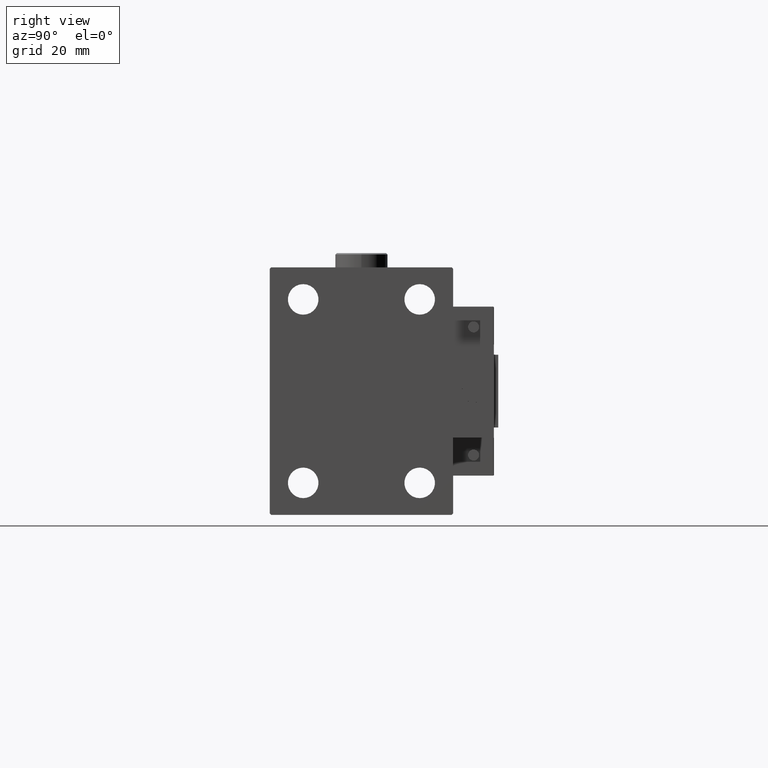
[diagram: clean part render]
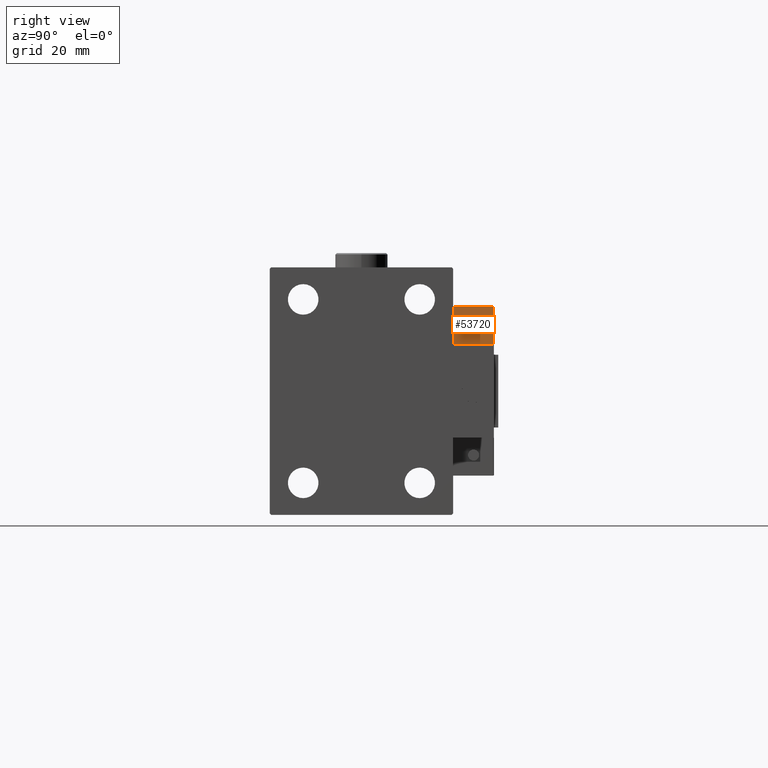
[diagram: same view with one face highlighted and labeled with its STEP entity id]
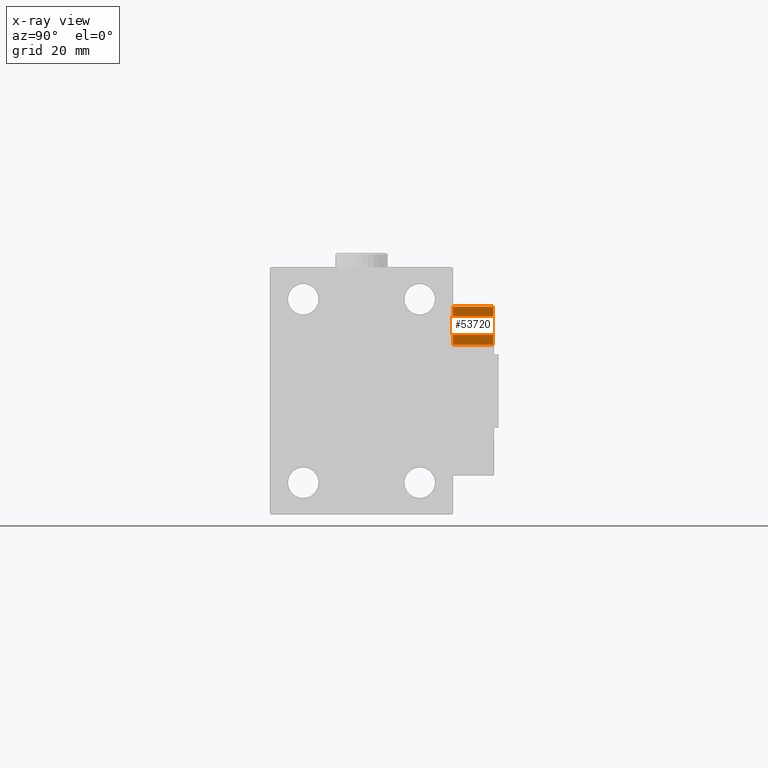
[diagram: x-ray of the same camera — body ghosted, the highlighted face saturated]
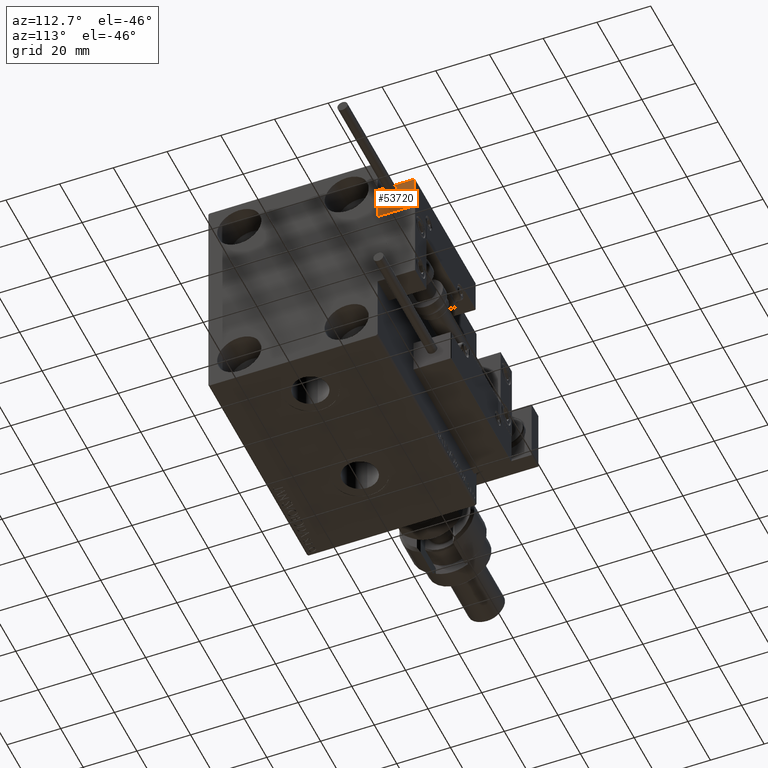
[diagram: same view with one face highlighted and labeled with its STEP entity id]
A machine part, right view. The second image highlights one B-rep face of the part: STEP entity #53720.
The next image is the same camera in x-ray: the body ghosted, the highlighted face saturated — about 6% of this face is hidden behind the body in this view.
A second angle (auxiliary view) of the same face is appended — the face is thin or edge-on in the first view.
In plain terms, the highlighted planar face has unit normal (-1, 0, 0).
Its self-contained STEP definition (entity closure, byte-faithful):
#2540 = EDGE_LOOP ( 'NONE', ( #51627, #54114, #50234, #18392 ) ) ;
#3536 = CARTESIAN_POINT ( 'NONE',  ( -26.99999999999993605, 20.00000000000002132, 14.00000000000000000 ) ) ;
#5853 = VERTEX_POINT ( 'NONE', #27845 ) ;
#7178 = DIRECTION ( 'NONE',  ( -8.006416042969869188E-16, -1.000000000000000000, 0.000000000000000000 ) ) ;
#7639 = VECTOR ( 'NONE', #7178, 1000.000000000000000 ) ;
#7714 = VECTOR ( 'NONE', #52290, 1000.000000000000000 ) ;
#8566 = AXIS2_PLACEMENT_3D ( 'NONE', #3536, #31888, #20317 ) ;
#9235 = EDGE_CURVE ( 'NONE', #19316, #38382, #32496, .T. ) ;
#9417 = EDGE_CURVE ( 'NONE', #5853, #38382, #51154, .T. ) ;
#10385 = CARTESIAN_POINT ( 'NONE',  ( -26.99999999999994671, 7.000000000000005329, 0.000000000000000000 ) ) ;
#12065 = FACE_OUTER_BOUND ( 'NONE', #2540, .T. ) ;
#12681 = DIRECTION ( 'NONE',  ( -0.000000000000000000, -0.000000000000000000, -1.000000000000000000 ) ) ;
#14126 = CARTESIAN_POINT ( 'NONE',  ( -26.99999999999993605, 20.00000000000002132, 14.00000000000000000 ) ) ;
#15156 = CARTESIAN_POINT ( 'NONE',  ( -26.99999999999993605, 20.00000000000002132, 13.70000000000000107 ) ) ;
#18392 = ORIENTED_EDGE ( 'NONE', *, *, #9235, .T. ) ;
#19316 = VERTEX_POINT ( 'NONE', #30175 ) ;
#20317 = DIRECTION ( 'NONE',  ( 8.006416042969869188E-16, 1.000000000000000000, 0.000000000000000000 ) ) ;
#21210 = CARTESIAN_POINT ( 'NONE',  ( -26.99999999999994671, 7.000000000000005329, 14.00000000000000000 ) ) ;
#22309 = LINE ( 'NONE', #15156, #34437 ) ;
#24713 = PLANE ( 'NONE',  #8566 ) ;
#25144 = VERTEX_POINT ( 'NONE', #30569 ) ;
#26756 = EDGE_CURVE ( 'NONE', #25144, #19316, #47898, .T. ) ;
#27845 = CARTESIAN_POINT ( 'NONE',  ( -26.99999999999994671, 7.000000000000005329, 13.70000000000000107 ) ) ;
#30175 = CARTESIAN_POINT ( 'NONE',  ( -26.99999999999993605, 20.00000000000002132, 0.000000000000000000 ) ) ;
#30569 = CARTESIAN_POINT ( 'NONE',  ( -26.99999999999993605, 20.00000000000002132, 13.70000000000000107 ) ) ;
#31888 = DIRECTION ( 'NONE',  ( 1.000000000000000000, -8.006416042969869188E-16, 0.000000000000000000 ) ) ;
#32496 = LINE ( 'NONE', #45107, #7639 ) ;
#34437 = VECTOR ( 'NONE', #47586, 1000.000000000000000 ) ;
#38382 = VERTEX_POINT ( 'NONE', #10385 ) ;
#39135 = EDGE_CURVE ( 'NONE', #5853, #25144, #22309, .T. ) ;
#45107 = CARTESIAN_POINT ( 'NONE',  ( -26.99999999999993605, 20.00000000000002132, 0.000000000000000000 ) ) ;
#47586 = DIRECTION ( 'NONE',  ( 8.006416042969869188E-16, 1.000000000000000000, -0.000000000000000000 ) ) ;
#47898 = LINE ( 'NONE', #14126, #7714 ) ;
#50234 = ORIENTED_EDGE ( 'NONE', *, *, #26756, .T. ) ;
#51154 = LINE ( 'NONE', #21210, #52407 ) ;
#51627 = ORIENTED_EDGE ( 'NONE', *, *, #9417, .F. ) ;
#52290 = DIRECTION ( 'NONE',  ( -0.000000000000000000, -0.000000000000000000, -1.000000000000000000 ) ) ;
#52407 = VECTOR ( 'NONE', #12681, 1000.000000000000000 ) ;
#53720 = ADVANCED_FACE ( 'NONE', ( #12065 ), #24713, .F. ) ;
#54114 = ORIENTED_EDGE ( 'NONE', *, *, #39135, .T. ) ;